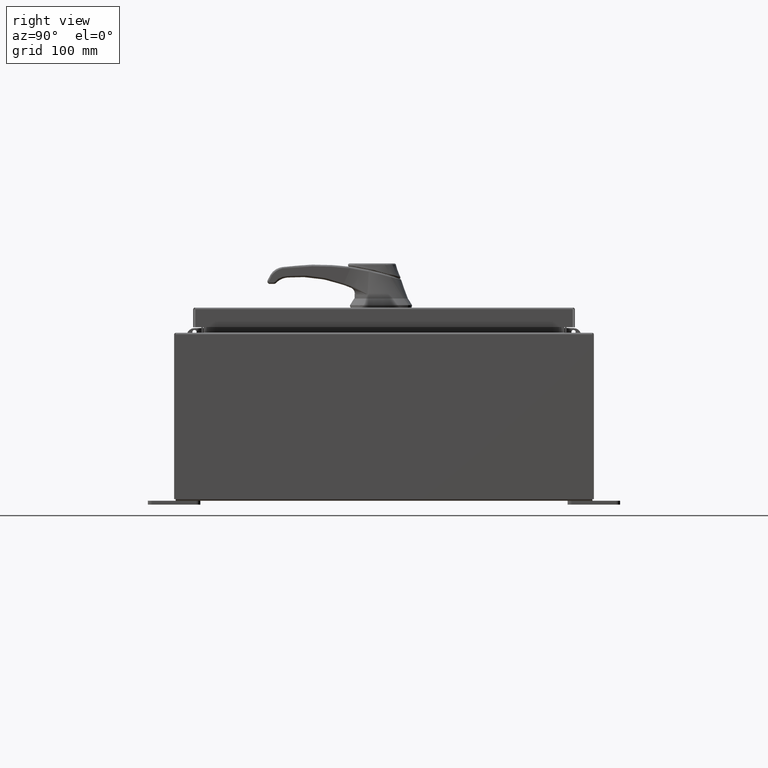
[diagram: clean part render]
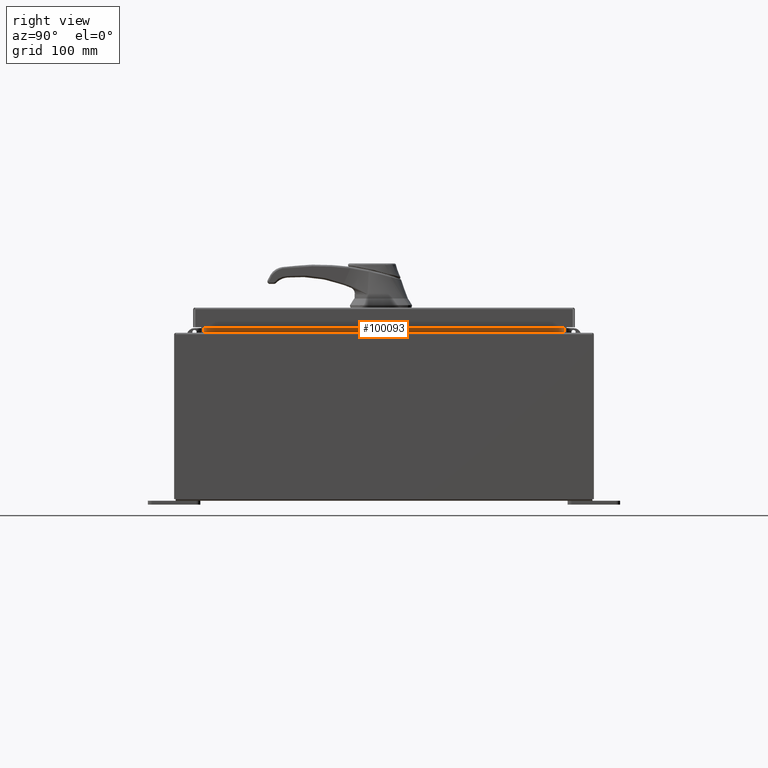
[diagram: same view with one face highlighted and labeled with its STEP entity id]
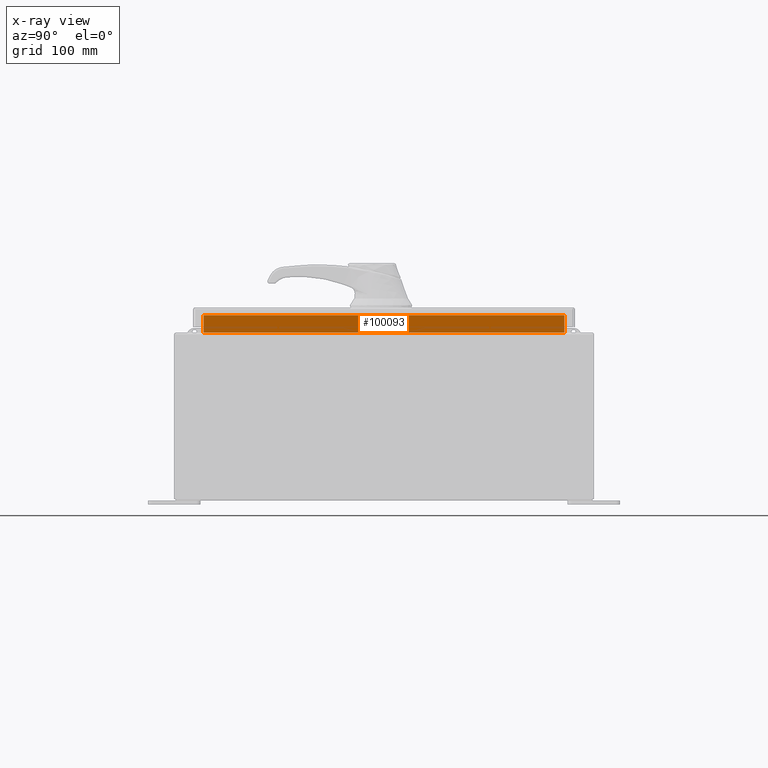
[diagram: x-ray of the same camera — body ghosted, the highlighted face saturated]
A machine part, right view. The second image highlights one B-rep face of the part: STEP entity #100093.
The next image is the same camera in x-ray: the body ghosted, the highlighted face saturated — about 0% of this face is hidden behind the body in this view.
In plain terms, the highlighted planar face has unit normal (1, 0, -0).
Its self-contained STEP definition (entity closure, byte-faithful):
#141 = VERTEX_POINT ( 'NONE', #70640 ) ;
#3903 = VERTEX_POINT ( 'NONE', #99412 ) ;
#4545 = DIRECTION ( 'NONE',  ( 0.0000000000000000000, 1.000000000000000000, 0.0000000000000000000 ) ) ;
#4584 = EDGE_CURVE ( 'NONE', #141, #14177, #14236, .T. ) ;
#6429 = VECTOR ( 'NONE', #82081, 39.37007874015748100 ) ;
#8907 = VECTOR ( 'NONE', #4545, 39.37007874015748100 ) ;
#12703 = VECTOR ( 'NONE', #74165, 39.37007874015748100 ) ;
#14177 = VERTEX_POINT ( 'NONE', #85111 ) ;
#14236 = LINE ( 'NONE', #21279, #8907 ) ;
#14516 = CARTESIAN_POINT ( 'NONE',  ( 10.69970000000002800, 8.593749999999998200, 7.925300000000008900 ) ) ;
#15683 = ORIENTED_EDGE ( 'NONE', *, *, #4584, .F. ) ;
#17237 = CARTESIAN_POINT ( 'NONE',  ( 10.69970000000003200, -8.593750000000001800, 8.850600000000010700 ) ) ;
#20983 = CARTESIAN_POINT ( 'NONE',  ( 10.69970000000002800, -8.593750000000003600, 7.938300000000011500 ) ) ;
#21279 = CARTESIAN_POINT ( 'NONE',  ( 10.69970000000003200, -8.593750000000001800, 8.762900000000010800 ) ) ;
#21486 = EDGE_CURVE ( 'NONE', #3903, #47420, #49071, .T. ) ;
#21553 = EDGE_CURVE ( 'NONE', #47420, #141, #109259, .T. ) ;
#24883 = EDGE_LOOP ( 'NONE', ( #104860, #15683, #30408, #92794 ) ) ;
#30408 = ORIENTED_EDGE ( 'NONE', *, *, #21553, .F. ) ;
#38961 = EDGE_CURVE ( 'NONE', #14177, #3903, #60700, .T. ) ;
#47420 = VERTEX_POINT ( 'NONE', #20983 ) ;
#49071 = LINE ( 'NONE', #73524, #6429 ) ;
#49127 = CARTESIAN_POINT ( 'NONE',  ( 10.69970000000000900, 1.360521494239859100E-015, -2.527176394925713800E-014 ) ) ;
#49486 = PLANE ( 'NONE',  #77197 ) ;
#58075 = DIRECTION ( 'NONE',  ( -2.361913319930196000E-015, 0.0000000000000000000, -1.000000000000000000 ) ) ;
#60700 = LINE ( 'NONE', #14516, #12703 ) ;
#66380 = VECTOR ( 'NONE', #76881, 39.37007874015748100 ) ;
#67068 = FACE_OUTER_BOUND ( 'NONE', #24883, .T. ) ;
#70640 = CARTESIAN_POINT ( 'NONE',  ( 10.69970000000003200, -8.593750000000001800, 8.762900000000010800 ) ) ;
#73524 = CARTESIAN_POINT ( 'NONE',  ( 10.69970000000002800, 8.593749999999998200, 7.938300000000008800 ) ) ;
#74165 = DIRECTION ( 'NONE',  ( -2.361913319930196000E-015, -0.0000000000000000000, -1.000000000000000000 ) ) ;
#76881 = DIRECTION ( 'NONE',  ( 4.723826639860397600E-015, -0.0000000000000000000, 1.000000000000000000 ) ) ;
#77197 = AXIS2_PLACEMENT_3D ( 'NONE', #49127, #109317, #58075 ) ;
#82081 = DIRECTION ( 'NONE',  ( 2.543102132283823400E-016, -1.000000000000000000, 3.814653198425735100E-016 ) ) ;
#85111 = CARTESIAN_POINT ( 'NONE',  ( 10.69970000000003200, 8.593749999999998200, 8.762900000000010800 ) ) ;
#92794 = ORIENTED_EDGE ( 'NONE', *, *, #21486, .F. ) ;
#99412 = CARTESIAN_POINT ( 'NONE',  ( 10.69970000000002800, 8.593749999999996400, 7.938300000000011500 ) ) ;
#100093 = ADVANCED_FACE ( 'NONE', ( #67068 ), #49486, .T. ) ;
#104860 = ORIENTED_EDGE ( 'NONE', *, *, #38961, .F. ) ;
#109259 = LINE ( 'NONE', #17237, #66380 ) ;
#109317 = DIRECTION ( 'NONE',  ( 1.000000000000000000, 1.271551066141908700E-016, -2.361913319930196000E-015 ) ) ;